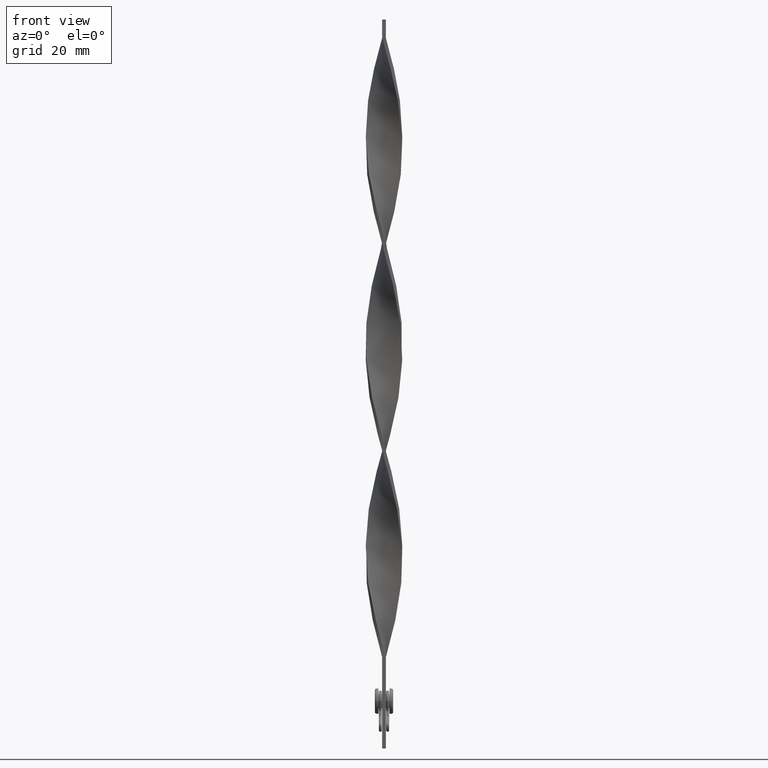
[diagram: clean part render]
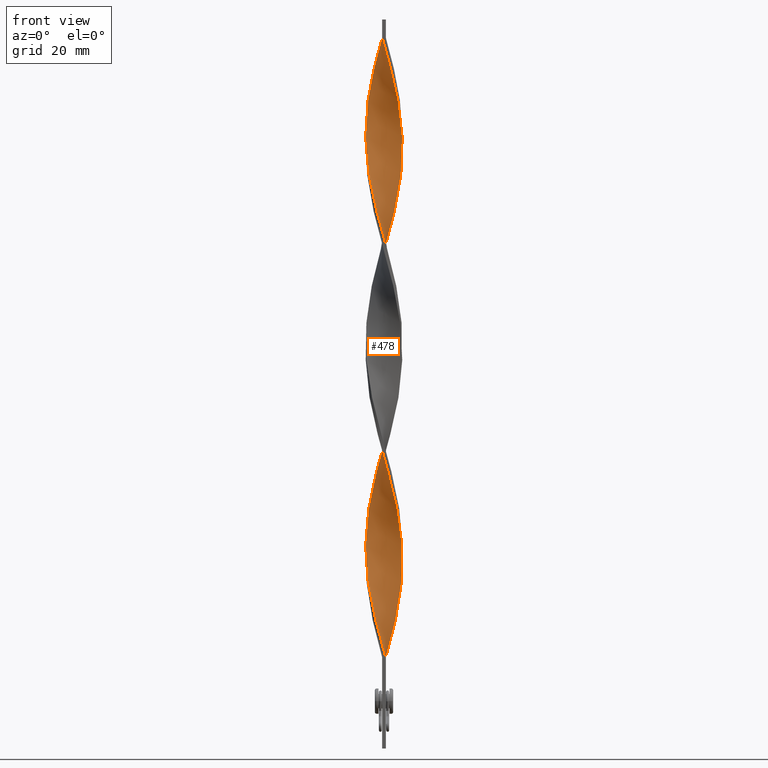
[diagram: same view with one face highlighted and labeled with its STEP entity id]
A machine part, front view. The second image highlights one B-rep face of the part: STEP entity #478.
In plain terms, the highlighted face is a freeform B-spline surface patch.
Its self-contained STEP definition (entity closure, byte-faithful):
#5 = CARTESIAN_POINT ( 'NONE',  ( -3.508828410751623217, -3.596960269992189207, 154.0740740740740478 ) ) ;
#7 = VECTOR ( 'NONE', #923, 1000.000000000000000 ) ;
#14 = CARTESIAN_POINT ( 'NONE',  ( -4.718173684218109010, 1.783846212051887647, 114.7222222222222285 ) ) ;
#30 =( BOUNDED_CURVE ( )  B_SPLINE_CURVE ( 2, ( #1325, #3055, #623, #4179, #987, #1722, #3827, #4131, #640, #3764, #2040, #2331, #1697, #2775, #4202, #1009, #2418, #3844, #4488, #1279, #1260, #940, #2002, #3073, #4220, #1763, #2090, #730, #707, #2157, #757, #4267, #408, #3866, #3234, #3594, #64, #1387, #4295, #383, #2795, #1414, #2133, #3208, #685, #1813, #3618, #430, #1049, #2183, #3521, #3967, #1461, #780, #338, #1744, #3159, #14, #40, #2887, #1789, #3135, #4602, #4243, #1366, #2842, #1440, #4582, #2817, #2438, #4321, #2865, #1025, #2461, #3891, #2112, #3543, #361, #3183, #1072, #3917, #2485, #3569, #1095, #2509, #3942, #1122, #2535, #2916, #2557, #115, #1929, #1215, #3360, #3644, #1164, #853, #1512, #88, #2283, #3260, #1862, #158, #184, #2235, #3289, #4348, #2650, #3713 ),
 .UNSPECIFIED., .F., .T. ) 
 B_SPLINE_CURVE_WITH_KNOTS ( ( 3, 2, 2, 2, 2, 2, 2, 2, 2, 2, 2, 2, 2, 2, 2, 2, 2, 2, 2, 2, 2, 2, 2, 2, 2, 2, 2, 2, 2, 2, 2, 2, 2, 2, 2, 2, 2, 2, 2, 2, 2, 2, 2, 2, 2, 2, 2, 2, 2, 2, 2, 2, 2, 2, 3 ),
 ( 0.000000000000000000, 0.01388888888888888812, 0.02777777777777777624, 0.04166666666666666435, 0.05555555555555555247, 0.06944444444444444753, 0.08333333333333332871, 0.09722222222222222376, 0.1111111111111111049, 0.1250000000000000000, 0.1388888888888888951, 0.1527777777777777901, 0.1666666666666666574, 0.1805555555555555525, 0.1944444444444444475, 0.2083333333333333426, 0.2222222222222222099, 0.2361111111111110772, 0.2500000000000000000, 0.2638888888888888951, 0.2777777777777777901, 0.2916666666666666852, 0.3055555555555555802, 0.3194444444444444198, 0.3333333333333333148, 0.3472222222222221544, 0.3611111111111111049, 0.3750000000000000000, 0.3888888888888888951, 0.4027777777777778456, 0.4166666666666666852, 0.4305555555555555802, 0.4444444444444444198, 0.4583333333333333148, 0.4722222222222221544, 0.4861111111111111049, 0.5000000000000000000, 0.5138888888888888395, 0.5277777777777777901, 0.5416666666666666297, 0.5555555555555555802, 0.5694444444444444198, 0.5833333333333333703, 0.5972222222222222099, 0.6111111111111111605, 0.6250000000000000000, 0.6388888888888888395, 0.6527777777777777901, 0.6666666666666666297, 0.6805555555555556912, 0.6944444444444443088, 0.7083333333333333703, 0.7222222222222222099, 0.7361111111111111605, 0.7500000000000000000 ),
 .UNSPECIFIED. ) 
 CURVE ( )  GEOMETRIC_REPRESENTATION_ITEM ( )  RATIONAL_B_SPLINE_CURVE ( ( 1.000000000000000000, 0.9961946980917455452, 1.000000000000000000, 0.9961946980917455452, 1.000000000000000000, 0.9961946980917455452, 1.000000000000000000, 0.9961946980917455452, 1.000000000000000000, 0.9961946980917455452, 1.000000000000000000, 0.9961946980917455452, 1.000000000000000000, 0.9961946980917455452, 1.000000000000000000, 0.9961946980917455452, 1.000000000000000000, 0.9961946980917455452, 1.000000000000000000, 0.9961946980917455452, 1.000000000000000000, 0.9961946980917455452, 1.000000000000000000, 0.9961946980917455452, 1.000000000000000000, 0.9961946980917455452, 1.000000000000000000, 0.9961946980917455452, 1.000000000000000000, 0.9961946980917455452, 1.000000000000000000, 0.9961946980917455452, 1.000000000000000000, 0.9961946980917455452, 1.000000000000000000, 0.9961946980917455452, 1.000000000000000000, 0.9961946980917455452, 1.000000000000000000, 0.9961946980917455452, 1.000000000000000000, 0.9961946980917455452, 1.000000000000000000, 0.9961946980917455452, 1.000000000000000000, 0.9961946980917455452, 1.000000000000000000, 0.9961946980917455452, 1.000000000000000000, 0.9961946980917455452, 1.000000000000000000, 0.9961946980917455452, 1.000000000000000000, 0.9961946980917455452, 1.000000000000000000, 0.9961946980917455452, 1.000000000000000000, 0.9961946980917455452, 1.000000000000000000, 0.9961946980917455452, 1.000000000000000000, 0.9961946980917455452, 1.000000000000000000, 0.9961946980917455452, 1.000000000000000000, 0.9961946980917455452, 1.000000000000000000, 0.9961946980917455452, 1.000000000000000000, 0.9961946980917455452, 1.000000000000000000, 0.9961946980917455452, 1.000000000000000000, 0.9961946980917455452, 1.000000000000000000, 0.9961946980917455452, 1.000000000000000000, 0.9961946980917455452, 1.000000000000000000, 0.9961946980917455452, 1.000000000000000000, 0.9961946980917455452, 1.000000000000000000, 0.9961946980917455452, 1.000000000000000000, 0.9961946980917455452, 1.000000000000000000, 0.9961946980917455452, 1.000000000000000000, 0.9961946980917455452, 1.000000000000000000, 0.9961946980917455452, 1.000000000000000000, 0.9961946980917455452, 1.000000000000000000, 0.9961946980917455452, 1.000000000000000000, 0.9961946980917455452, 1.000000000000000000, 0.9961946980917455452, 1.000000000000000000, 0.9961946980917455452, 1.000000000000000000, 0.9961946980917455452, 1.000000000000000000, 0.9961946980917455452, 1.000000000000000000, 0.9961946980917455452, 1.000000000000000000 ) ) 
 REPRESENTATION_ITEM ( '' )  );
#31 = VERTEX_POINT ( 'NONE', #1310 ) ;
#33 = CARTESIAN_POINT ( 'NONE',  ( -0.3758370118285474515, -5.010862853894509250, 141.4814814814814952 ) ) ;
#40 = CARTESIAN_POINT ( 'NONE',  ( -4.527453032266704369, 2.179947027021293504, 116.2962962962962905 ) ) ;
#47 = CARTESIAN_POINT ( 'NONE',  ( -3.508828410751623217, -3.596960269992189207, 40.74074074074074758 ) ) ;
#56 = CARTESIAN_POINT ( 'NONE',  ( 4.869473175592371916, 1.240254406235388629, 47.03703703703703809 ) ) ;
#64 = CARTESIAN_POINT ( 'NONE',  ( -0.4999999999999990563, -4.999999999999995559, 81.66666666666667140 ) ) ;
#69 = CARTESIAN_POINT ( 'NONE',  ( -4.956255668237042222, -0.9374433176296222969, 51.75925925925925952 ) ) ;
#78 = CARTESIAN_POINT ( 'NONE',  ( -4.399289062685688201, 2.467696489772257973, 177.6851851851851620 ) ) ;
#88 = CARTESIAN_POINT ( 'NONE',  ( 3.508828410751617444, -3.596960269992182990, 179.2592592592592666 ) ) ;
#96 = CARTESIAN_POINT ( 'NONE',  ( -4.151616020438163801, 2.830915826873209973, 65.92592592592592382 ) ) ;
#106 = CARTESIAN_POINT ( 'NONE',  ( -3.289977561793730576, -3.823521657529081352, 92.68518518518517624 ) ) ;
#115 = CARTESIAN_POINT ( 'NONE',  ( 4.999999999999995559, -0.4999999999999993339, 166.6666666666666572 ) ) ;
#120 = CARTESIAN_POINT ( 'NONE',  ( -5.000000000000004441, -0.5000000000000013323, 166.6666666666666572 ) ) ;
#128 = CARTESIAN_POINT ( 'NONE',  ( -0.3758370118285475625, 5.010862853894500368, 135.1851851851851904 ) ) ;
#142 = CARTESIAN_POINT ( 'NONE',  ( 2.066987298107780813, 4.580127018922198090, 91.11111111111111427 ) ) ;
#149 = CARTESIAN_POINT ( 'NONE',  ( -4.399289062685677543, -2.467696489772257085, 98.98148148148148096 ) ) ;
#158 = CARTESIAN_POINT ( 'NONE',  ( 2.066987298107778148, -4.580127018922190096, 185.5555555555555429 ) ) ;
#161 = CARTESIAN_POINT ( 'NONE',  ( -0.3758370118285474515, -5.010862853894509250, 28.14814814814815236 ) ) ;
#165 = CARTESIAN_POINT ( 'NONE',  ( 2.576047841990709575, -4.336732380315305058, 130.4629629629629619 ) ) ;
#177 = CARTESIAN_POINT ( 'NONE',  ( 1.240254406235389073, -4.869473175592371916, 75.37037037037036669 ) ) ;
#184 = CARTESIAN_POINT ( 'NONE',  ( 1.666278106443302320, -4.760964975158699097, 187.1296296296296191 ) ) ;
#185 = CARTESIAN_POINT ( 'NONE',  ( 4.080127018922194537, 2.933012701892224516, 100.5555555555555713 ) ) ;
#189 = CARTESIAN_POINT ( 'NONE',  ( -3.194135163974160196, -3.903942978190640289, 152.5000000000000000 ) ) ;
#205 = CARTESIAN_POINT ( 'NONE',  ( -5.043744331762966659, -0.06255668237038140844, 54.90740740740741188 ) ) ;
#209 = CARTESIAN_POINT ( 'NONE',  ( -4.837214676227579169, -1.360644764840757803, 163.5185185185185048 ) ) ;
#223 = CARTESIAN_POINT ( 'NONE',  ( -4.527453032266710586, -2.179947027021300610, 47.03703703703703809 ) ) ;
#227 = CARTESIAN_POINT ( 'NONE',  ( -0.5000000000000016653, 5.000000000000004441, 195.0000000000000000 ) ) ;
#244 = CARTESIAN_POINT ( 'NONE',  ( 0.06255668237038064516, -5.043744331762966659, 26.57407407407407618 ) ) ;
#289 = CARTESIAN_POINT ( 'NONE',  ( -2.179947027021300610, 4.527453032266710586, 188.7037037037036953 ) ) ;
#297 = CARTESIAN_POINT ( 'NONE',  ( 4.977981376026044735, 0.8142307060274744934, 161.9444444444444002 ) ) ;
#315 = CARTESIAN_POINT ( 'NONE',  ( -3.289977561793739458, 3.823521657529084905, 183.9814814814814667 ) ) ;
#331 = CARTESIAN_POINT ( 'NONE',  ( -2.576047841990706910, 4.336732380315305946, 187.1296296296296191 ) ) ;
#335 = ORIENTED_EDGE ( 'NONE', *, *, #2996, .F. ) ;
#338 = CARTESIAN_POINT ( 'NONE',  ( -4.999999999999995559, 0.4999999999999988343, 110.0000000000000142 ) ) ;
#353 = CARTESIAN_POINT ( 'NONE',  ( -4.760964975158708867, 1.666278106443303875, 174.5370370370370381 ) ) ;
#361 = CARTESIAN_POINT ( 'NONE',  ( 2.576047841990702025, 4.336732380315298840, 146.2037037037036953 ) ) ;
#375 = CARTESIAN_POINT ( 'NONE',  ( -4.977981376026053617, 0.8142307060274747155, 171.3888888888888857 ) ) ;
#383 = CARTESIAN_POINT ( 'NONE',  ( -1.783846212051890312, -4.718173684218108122, 86.38888888888888573 ) ) ;
#402 = CARTESIAN_POINT ( 'NONE',  ( -5.043744331762966659, -0.06255668237038140844, 168.2407407407407618 ) ) ;
#408 = CARTESIAN_POINT ( 'NONE',  ( 1.240254406235389073, -4.869473175592371916, 75.37037037037036669 ) ) ;
#430 = CARTESIAN_POINT ( 'NONE',  ( -4.399289062685677543, -2.467696489772257085, 98.98148148148148096 ) ) ;
#436 = CARTESIAN_POINT ( 'NONE',  ( -1.240254406235389739, -4.869473175592380798, 31.29629629629629406 ) ) ;
#447 = CARTESIAN_POINT ( 'NONE',  ( -0.9374433176296181891, -4.956255668237032452, 83.24074074074074758 ) ) ;
#465 = CARTESIAN_POINT ( 'NONE',  ( 2.179947027021303718, -4.527453032266708810, 132.0370370370370381 ) ) ;
#472 = CARTESIAN_POINT ( 'NONE',  ( -4.999999999999995559, 0.4999999999999988343, 110.0000000000000142 ) ) ;
#478 = ADVANCED_FACE ( 'NONE', ( #4349 ), #2414, .T. ) ;
#490 = CARTESIAN_POINT ( 'NONE',  ( 4.977981376026053617, -0.8142307060274732722, 114.7222222222222285 ) ) ;
#498 = CARTESIAN_POINT ( 'NONE',  ( 4.837214676227571175, -1.360644764840754473, 56.48148148148148806 ) ) ;
#511 = CARTESIAN_POINT ( 'NONE',  ( 0.8142307060274756036, 4.977981376026053617, 86.38888888888888573 ) ) ;
#516 = CARTESIAN_POINT ( 'NONE',  ( -2.179947027021300610, 4.527453032266710586, 75.37037037037036669 ) ) ;
#523 = CARTESIAN_POINT ( 'NONE',  ( -1.783846212051890312, -4.718173684218108122, 86.38888888888888573 ) ) ;
#532 = CARTESIAN_POINT ( 'NONE',  ( 3.823521657529084461, 3.289977561793739458, 98.98148148148148096 ) ) ;
#535 = CARTESIAN_POINT ( 'NONE',  ( 1.360644764840757803, -4.837214676227579169, 135.1851851851851904 ) ) ;
#548 = CARTESIAN_POINT ( 'NONE',  ( -0.4999999999999990563, -4.999999999999995559, 81.66666666666667140 ) ) ;
#554 = CARTESIAN_POINT ( 'NONE',  ( -4.151616020438163801, 2.830915826873209973, 65.92592592592592382 ) ) ;
#557 = CARTESIAN_POINT ( 'NONE',  ( 4.760964975158708867, -1.666278106443300988, 117.8703703703703809 ) ) ;
#573 = CARTESIAN_POINT ( 'NONE',  ( -4.837214676227579169, -1.360644764840757803, 50.18518518518518334 ) ) ;
#577 = CARTESIAN_POINT ( 'NONE',  ( -1.360644764840759136, 4.837214676227578281, 191.8518518518518476 ) ) ;
#594 = CARTESIAN_POINT ( 'NONE',  ( 4.151616020438163801, -2.830915826873209529, 122.5925925925925810 ) ) ;
#598 = CARTESIAN_POINT ( 'NONE',  ( -3.596960269992189652, 3.508828410751622773, 182.4074074074074190 ) ) ;
#623 = CARTESIAN_POINT ( 'NONE',  ( 1.360644764840754473, 4.837214676227571175, 28.14814814814815236 ) ) ;
#640 = CARTESIAN_POINT ( 'NONE',  ( 3.596960269992182546, 3.508828410751617444, 37.59259259259259522 ) ) ;
#644 = CARTESIAN_POINT ( 'NONE',  ( 4.399289062685679319, 2.467696489772255308, 155.6481481481481524 ) ) ;
#656 = CARTESIAN_POINT ( 'NONE',  ( -2.576047841990706910, 4.336732380315305946, 187.1296296296296191 ) ) ;
#662 = CARTESIAN_POINT ( 'NONE',  ( 5.010862853894500368, 0.3758370118285476735, 163.5185185185185048 ) ) ;
#674 = ORIENTED_EDGE ( 'NONE', *, *, #3906, .F. ) ;
#675 = CARTESIAN_POINT ( 'NONE',  ( -4.837214676227579169, -1.360644764840757803, 163.5185185185185048 ) ) ;
#685 = CARTESIAN_POINT ( 'NONE',  ( -3.596960269992182546, -3.508828410751617444, 94.25925925925926663 ) ) ;
#691 = CARTESIAN_POINT ( 'NONE',  ( 4.760964975158699097, 1.666278106443301876, 158.7962962962963047 ) ) ;
#700 = CARTESIAN_POINT ( 'NONE',  ( -3.903942978190639845, 3.194135163974159752, 180.8333333333333144 ) ) ;
#707 = CARTESIAN_POINT ( 'NONE',  ( 2.830915826873205532, -4.151616020438155807, 69.07407407407406197 ) ) ;
#713 = CARTESIAN_POINT ( 'NONE',  ( -2.830915826873209529, -4.151616020438163801, 37.59259259259259522 ) ) ;
#723 = CARTESIAN_POINT ( 'NONE',  ( 3.903942978190633184, 3.194135163974154423, 39.16666666666667140 ) ) ;
#730 = CARTESIAN_POINT ( 'NONE',  ( 3.194135163974154867, -3.903942978190632296, 67.50000000000000000 ) ) ;
#736 = CARTESIAN_POINT ( 'NONE',  ( -5.010862853894509250, 0.3758370118285473405, 56.48148148148148806 ) ) ;
#746 = CARTESIAN_POINT ( 'NONE',  ( 0.06255668237038064516, -5.043744331762966659, 139.9074074074073906 ) ) ;
#757 = CARTESIAN_POINT ( 'NONE',  ( 2.066987298107778148, -4.580127018922190096, 72.22222222222221433 ) ) ;
#773 = CARTESIAN_POINT ( 'NONE',  ( 5.010862853894500368, 0.3758370118285476735, 50.18518518518518334 ) ) ;
#780 = CARTESIAN_POINT ( 'NONE',  ( -5.043744331762957778, 0.06255668237037967372, 108.4259259259259238 ) ) ;
#788 = CARTESIAN_POINT ( 'NONE',  ( -4.869473175592380798, 1.240254406235389739, 59.62962962962962621 ) ) ;
#793 = CARTESIAN_POINT ( 'NONE',  ( 3.289977561793731020, 3.823521657529080464, 149.3518518518518476 ) ) ;
#805 = CARTESIAN_POINT ( 'NONE',  ( 4.956255668237042222, 0.9374433176296217418, 108.4259259259259238 ) ) ;
#815 = CARTESIAN_POINT ( 'NONE',  ( 4.956255668237032452, -0.9374433176296185222, 54.90740740740741188 ) ) ;
#835 = CARTESIAN_POINT ( 'NONE',  ( 2.830915826873209529, 4.151616020438163801, 94.25925925925926663 ) ) ;
#845 = CARTESIAN_POINT ( 'NONE',  ( 3.823521657529081352, -3.289977561793730576, 64.35185185185184764 ) ) ;
#853 = CARTESIAN_POINT ( 'NONE',  ( 4.080127018922190096, -2.933012701892215635, 176.1111111111111143 ) ) ;
#855 = CARTESIAN_POINT ( 'NONE',  ( -0.06255668237038172763, 5.043744331762966659, 83.24074074074074758 ) ) ;
#860 = CARTESIAN_POINT ( 'NONE',  ( 1.240254406235389517, 4.869473175592380798, 87.96296296296296191 ) ) ;
#867 = CARTESIAN_POINT ( 'NONE',  ( 4.336732380315299729, -2.576047841990701581, 61.20370370370370239 ) ) ;
#878 = CARTESIAN_POINT ( 'NONE',  ( -4.399289062685688201, 2.467696489772257973, 64.35185185185184764 ) ) ;
#881 = CARTESIAN_POINT ( 'NONE',  ( 5.043744331762966659, 0.06255668237038200519, 111.5740740740740762 ) ) ;
#887 = CARTESIAN_POINT ( 'NONE',  ( -4.977981376026044735, -0.8142307060274738273, 105.2777777777777715 ) ) ;
#898 = CARTESIAN_POINT ( 'NONE',  ( -1.666278106443304319, -4.760964975158707979, 32.87037037037037379 ) ) ;
#901 = CARTESIAN_POINT ( 'NONE',  ( 4.151616020438163801, -2.830915826873209529, 122.5925925925925810 ) ) ;
#918 = CARTESIAN_POINT ( 'NONE',  ( -0.5000000000000016653, 5.000000000000004441, 81.66666666666667140 ) ) ;
#923 = DIRECTION ( 'NONE',  ( 1.301042606982605321E-16, -1.000000000000000000, 0.000000000000000000 ) ) ;
#938 = CARTESIAN_POINT ( 'NONE',  ( 1.666278106443303875, 4.760964975158708867, 89.53703703703702388 ) ) ;
#940 = CARTESIAN_POINT ( 'NONE',  ( 4.718173684218108122, -1.783846212051889424, 58.05555555555555713 ) ) ;
#944 = CARTESIAN_POINT ( 'NONE',  ( 4.151616020438156696, 2.830915826873205088, 154.0740740740740478 ) ) ;
#959 = CARTESIAN_POINT ( 'NONE',  ( -1.666278106443304319, -4.760964975158707979, 146.2037037037037237 ) ) ;
#987 = CARTESIAN_POINT ( 'NONE',  ( 2.179947027021296169, 4.527453032266704369, 31.29629629629629406 ) ) ;
#992 = CARTESIAN_POINT ( 'NONE',  ( 1.240254406235389073, -4.869473175592371916, 188.7037037037036953 ) ) ;
#1009 = CARTESIAN_POINT ( 'NONE',  ( 4.977981376026044735, 0.8142307060274744934, 48.61111111111111427 ) ) ;
#1025 = CARTESIAN_POINT ( 'NONE',  ( 0.4999999999999996669, 4.999999999999995559, 138.3333333333333428 ) ) ;
#1040 = CARTESIAN_POINT ( 'NONE',  ( 0.5000000000000009992, -5.000000000000004441, 138.3333333333333428 ) ) ;
#1049 = CARTESIAN_POINT ( 'NONE',  ( -4.580127018922189208, -2.066987298107781257, 100.5555555555555713 ) ) ;
#1051 = CARTESIAN_POINT ( 'NONE',  ( -0.5000000000000016653, 5.000000000000004441, 195.0000000000000000 ) ) ;
#1064 = CARTESIAN_POINT ( 'NONE',  ( 2.576047841990702025, 4.336732380315298840, 32.87037037037037379 ) ) ;
#1072 = CARTESIAN_POINT ( 'NONE',  ( 3.289977561793731464, 3.823521657529080464, 149.3518518518518476 ) ) ;
#1079 = CARTESIAN_POINT ( 'NONE',  ( -5.043744331762966659, -0.06255668237038140844, 54.90740740740740478 ) ) ;
#1089 = CARTESIAN_POINT ( 'NONE',  ( -2.933012701892221852, 4.080127018922197202, 185.5555555555555429 ) ) ;
#1095 = CARTESIAN_POINT ( 'NONE',  ( 4.399289062685679319, 2.467696489772255308, 155.6481481481481524 ) ) ;
#1111 = CARTESIAN_POINT ( 'NONE',  ( -5.010862853894509250, 0.3758370118285473405, 169.8148148148148096 ) ) ;
#1122 = CARTESIAN_POINT ( 'NONE',  ( 4.869473175592371916, 1.240254406235388629, 160.3703703703703525 ) ) ;
#1129 = CARTESIAN_POINT ( 'NONE',  ( -4.977981376026053617, 0.8142307060274747155, 58.05555555555555713 ) ) ;
#1136 = CARTESIAN_POINT ( 'NONE',  ( 2.179947027021296169, 4.527453032266704369, 144.6296296296296475 ) ) ;
#1149 = CARTESIAN_POINT ( 'NONE',  ( -0.5000000000000016653, 5.000000000000004441, 81.66666666666667140 ) ) ;
#1156 = CARTESIAN_POINT ( 'NONE',  ( -4.336732380315300617, 2.576047841990698917, 117.8703703703703667 ) ) ;
#1164 = CARTESIAN_POINT ( 'NONE',  ( 4.336732380315299729, -2.576047841990701581, 174.5370370370370381 ) ) ;
#1169 = CARTESIAN_POINT ( 'NONE',  ( -2.933012701892221852, 4.080127018922197202, 72.22222222222221433 ) ) ;
#1181 = CARTESIAN_POINT ( 'NONE',  ( 3.194135163974154423, -3.903942978190632296, 67.50000000000001421 ) ) ;
#1196 = CARTESIAN_POINT ( 'NONE',  ( -1.240254406235389739, -4.869473175592380798, 144.6296296296296475 ) ) ;
#1206 = CARTESIAN_POINT ( 'NONE',  ( -3.508828410751617888, 3.596960269992182546, 122.5925925925925810 ) ) ;
#1215 = CARTESIAN_POINT ( 'NONE',  ( 4.837214676227571175, -1.360644764840754473, 169.8148148148148096 ) ) ;
#1217 = CARTESIAN_POINT ( 'NONE',  ( -3.596960269992189652, 3.508828410751622773, 69.07407407407406197 ) ) ;
#1221 = CARTESIAN_POINT ( 'NONE',  ( 1.666278106443303875, 4.760964975158708867, 89.53703703703702388 ) ) ;
#1228 = CARTESIAN_POINT ( 'NONE',  ( 0.4999999999999996669, 4.999999999999995559, 138.3333333333333428 ) ) ;
#1234 = CARTESIAN_POINT ( 'NONE',  ( 5.000000000000004441, 0.5000000000000018874, 110.0000000000000142 ) ) ;
#1237 = CARTESIAN_POINT ( 'NONE',  ( 1.783846212051893421, -4.718173684218117003, 133.6111111111111143 ) ) ;
#1256 = CARTESIAN_POINT ( 'NONE',  ( -4.869473175592380798, 1.240254406235389739, 59.62962962962962621 ) ) ;
#1260 = CARTESIAN_POINT ( 'NONE',  ( 4.837214676227571175, -1.360644764840754473, 56.48148148148148806 ) ) ;
#1276 = CARTESIAN_POINT ( 'NONE',  ( 4.869473175592381686, -1.240254406235387297, 116.2962962962962905 ) ) ;
#1279 = CARTESIAN_POINT ( 'NONE',  ( 4.956255668237033341, -0.9374433176296185222, 54.90740740740740478 ) ) ;
#1294 = CARTESIAN_POINT ( 'NONE',  ( -0.5000000000000016653, 5.000000000000004441, 195.0000000000000000 ) ) ;
#1298 = CARTESIAN_POINT ( 'NONE',  ( -2.933012701892221852, 4.080127018922197202, 72.22222222222221433 ) ) ;
#1306 = CARTESIAN_POINT ( 'NONE',  ( -0.06255668237037995127, -5.043744331762956890, 193.4259259259259238 ) ) ;
#1310 = CARTESIAN_POINT ( 'NONE',  ( 0.4999999999999996669, 4.999999999999995559, 25.00000000000000000 ) ) ;
#1325 = CARTESIAN_POINT ( 'NONE',  ( 0.4999999999999996669, 4.999999999999995559, 25.00000000000000000 ) ) ;
#1332 = CARTESIAN_POINT ( 'NONE',  ( 4.580127018922189208, 2.066987298107779036, 157.2222222222222001 ) ) ;
#1366 = CARTESIAN_POINT ( 'NONE',  ( -2.830915826873206864, 4.151616020438154919, 125.7407407407407334 ) ) ;
#1379 = CARTESIAN_POINT ( 'NONE',  ( -4.336732380315305946, -2.576047841990706466, 158.7962962962963047 ) ) ;
#1387 = CARTESIAN_POINT ( 'NONE',  ( -0.9374433176296181891, -4.956255668237033341, 83.24074074074073337 ) ) ;
#1406 = CARTESIAN_POINT ( 'NONE',  ( 1.360644764840754473, 4.837214676227571175, 28.14814814814815236 ) ) ;
#1414 = CARTESIAN_POINT ( 'NONE',  ( -2.576047841990701137, -4.336732380315299729, 89.53703703703702388 ) ) ;
#1427 = CARTESIAN_POINT ( 'NONE',  ( 3.903942978190633184, 3.194135163974154423, 152.5000000000000000 ) ) ;
#1431 = CARTESIAN_POINT ( 'NONE',  ( 4.580127018922189208, 2.066987298107779036, 43.88888888888889284 ) ) ;
#1440 = CARTESIAN_POINT ( 'NONE',  ( -2.066987298107781257, 4.580127018922188320, 128.8888888888888857 ) ) ;
#1455 = CARTESIAN_POINT ( 'NONE',  ( -2.467696489772259305, -4.399289062685687313, 149.3518518518518476 ) ) ;
#1461 = CARTESIAN_POINT ( 'NONE',  ( -5.010862853894500368, -0.3758370118285472294, 106.8518518518518619 ) ) ;
#1466 = CARTESIAN_POINT ( 'NONE',  ( -4.527453032266710586, -2.179947027021300610, 47.03703703703703809 ) ) ;
#1477 = CARTESIAN_POINT ( 'NONE',  ( 0.3758370118285490613, -5.010862853894500368, 78.51851851851851904 ) ) ;
#1495 = LINE ( 'NONE', #2683, #7 ) ;
#1502 = CARTESIAN_POINT ( 'NONE',  ( -3.823521657529080464, 3.289977561793731020, 121.0185185185185333 ) ) ;
#1507 = VERTEX_POINT ( 'NONE', #2101 ) ;
#1512 = CARTESIAN_POINT ( 'NONE',  ( 3.823521657529081352, -3.289977561793731020, 177.6851851851851620 ) ) ;
#1518 = CARTESIAN_POINT ( 'NONE',  ( -2.467696489772259305, -4.399289062685687313, 149.3518518518518476 ) ) ;
#1524 = CARTESIAN_POINT ( 'NONE',  ( -1.240254406235391738, 4.869473175592371028, 132.0370370370370381 ) ) ;
#1540 = CARTESIAN_POINT ( 'NONE',  ( 3.596960269992190540, -3.508828410751622329, 125.7407407407407334 ) ) ;
#1551 = CARTESIAN_POINT ( 'NONE',  ( 2.066987298107778148, -4.580127018922190096, 72.22222222222221433 ) ) ;
#1562 = CARTESIAN_POINT ( 'NONE',  ( -0.8142307060274753816, -4.977981376026053617, 29.72222222222222143 ) ) ;
#1567 = CARTESIAN_POINT ( 'NONE',  ( -1.360644764840759136, 4.837214676227578281, 78.51851851851851904 ) ) ;
#1577 = CARTESIAN_POINT ( 'NONE',  ( -4.527453032266704369, 2.179947027021293504, 116.2962962962962905 ) ) ;
#1584 = CARTESIAN_POINT ( 'NONE',  ( -4.760964975158708867, 1.666278106443303875, 61.20370370370370239 ) ) ;
#1588 = CARTESIAN_POINT ( 'NONE',  ( -2.830915826873209529, -4.151616020438163801, 150.9259259259259238 ) ) ;
#1601 = CARTESIAN_POINT ( 'NONE',  ( -3.903942978190639845, 3.194135163974159752, 67.50000000000001421 ) ) ;
#1605 = CARTESIAN_POINT ( 'NONE',  ( -0.9374433176296214087, 4.956255668237042222, 80.09259259259260944 ) ) ;
#1626 = CARTESIAN_POINT ( 'NONE',  ( 4.977981376026053617, -0.8142307060274731612, 114.7222222222222285 ) ) ;
#1650 = CARTESIAN_POINT ( 'NONE',  ( 2.066987298107780813, 4.580127018922198090, 91.11111111111111427 ) ) ;
#1652 = CARTESIAN_POINT ( 'NONE',  ( -3.903942978190640289, 3.194135163974159752, 180.8333333333333144 ) ) ;
#1658 = CARTESIAN_POINT ( 'NONE',  ( 4.527453032266704369, -2.179947027021296169, 172.9629629629629619 ) ) ;
#1674 = CARTESIAN_POINT ( 'NONE',  ( -5.043744331762966659, -0.06255668237038140844, 168.2407407407407334 ) ) ;
#1697 = CARTESIAN_POINT ( 'NONE',  ( 4.580127018922189208, 2.066987298107779036, 43.88888888888889284 ) ) ;
#1704 = CARTESIAN_POINT ( 'NONE',  ( 1.666278106443302320, -4.760964975158699097, 187.1296296296296191 ) ) ;
#1722 = CARTESIAN_POINT ( 'NONE',  ( 2.576047841990702025, 4.336732380315298840, 32.87037037037036669 ) ) ;
#1737 = CARTESIAN_POINT ( 'NONE',  ( -1.783846212051894753, 4.718173684218115227, 190.2777777777777999 ) ) ;
#1744 = CARTESIAN_POINT ( 'NONE',  ( -4.956255668237033341, 0.9374433176296179671, 111.5740740740740762 ) ) ;
#1755 = CARTESIAN_POINT ( 'NONE',  ( 0.4999999999999996669, 4.999999999999995559, 25.00000000000000000 ) ) ;
#1763 = CARTESIAN_POINT ( 'NONE',  ( 3.823521657529081352, -3.289977561793731020, 64.35185185185184764 ) ) ;
#1769 = CARTESIAN_POINT ( 'NONE',  ( -0.8142307060274753816, -4.977981376026053617, 29.72222222222222143 ) ) ;
#1780 = CARTESIAN_POINT ( 'NONE',  ( 2.933012701892216523, 4.080127018922189208, 34.44444444444444287 ) ) ;
#1789 = CARTESIAN_POINT ( 'NONE',  ( -4.080127018922188320, 2.933012701892217411, 119.4444444444444429 ) ) ;
#1797 = CARTESIAN_POINT ( 'NONE',  ( -0.3758370118285474515, -5.010862853894509250, 28.14814814814815236 ) ) ;
#1806 = CARTESIAN_POINT ( 'NONE',  ( -2.066987298107781701, -4.580127018922198090, 147.7777777777777715 ) ) ;
#1813 = CARTESIAN_POINT ( 'NONE',  ( -3.903942978190632296, -3.194135163974155311, 95.83333333333332860 ) ) ;
#1819 = CARTESIAN_POINT ( 'NONE',  ( -4.336732380315305946, -2.576047841990706466, 45.46296296296296902 ) ) ;
#1828 = CARTESIAN_POINT ( 'NONE',  ( -3.194135163974160196, -3.903942978190639845, 152.5000000000000000 ) ) ;
#1841 = CARTESIAN_POINT ( 'NONE',  ( -4.580127018922198090, 2.066987298107780813, 62.77777777777777857 ) ) ;
#1852 = CARTESIAN_POINT ( 'NONE',  ( -2.933012701892215635, -4.080127018922190985, 91.11111111111111427 ) ) ;
#1862 = CARTESIAN_POINT ( 'NONE',  ( 2.467696489772257085, -4.399289062685677543, 183.9814814814814667 ) ) ;
#1868 = CARTESIAN_POINT ( 'NONE',  ( -2.066987298107781701, -4.580127018922198090, 147.7777777777777715 ) ) ;
#1876 = CARTESIAN_POINT ( 'NONE',  ( -4.760964975158698209, -1.666278106443304763, 102.1296296296296333 ) ) ;
#1894 = CARTESIAN_POINT ( 'NONE',  ( 4.399289062685687313, -2.467696489772259305, 121.0185185185185190 ) ) ;
#1900 = CARTESIAN_POINT ( 'NONE',  ( 2.467696489772257085, -4.399289062685677543, 70.64814814814815236 ) ) ;
#1910 = CARTESIAN_POINT ( 'NONE',  ( 3.194135163974159752, 3.903942978190640289, 95.83333333333331439 ) ) ;
#1912 = EDGE_LOOP ( 'NONE', ( #3776, #2011, #335, #674 ) ) ;
#1915 = CARTESIAN_POINT ( 'NONE',  ( 3.508828410751622773, 3.596960269992189652, 97.40740740740741899 ) ) ;
#1923 = CARTESIAN_POINT ( 'NONE',  ( -4.151616020438155807, -2.830915826873205532, 97.40740740740741899 ) ) ;
#1929 = CARTESIAN_POINT ( 'NONE',  ( 4.956255668237033341, -0.9374433176296185222, 168.2407407407407334 ) ) ;
#1931 = CARTESIAN_POINT ( 'NONE',  ( -4.956255668237042222, -0.9374433176296222969, 51.75925925925925952 ) ) ;
#1936 = CARTESIAN_POINT ( 'NONE',  ( -0.8142307060274753816, -4.977981376026053617, 143.0555555555555429 ) ) ;
#1947 = CARTESIAN_POINT ( 'NONE',  ( 0.8142307060274758257, -4.977981376026043847, 76.94444444444445708 ) ) ;
#1954 = CARTESIAN_POINT ( 'NONE',  ( 4.718173684218117003, 1.783846212051892977, 105.2777777777777715 ) ) ;
#1957 = CARTESIAN_POINT ( 'NONE',  ( -4.527453032266710586, -2.179947027021300610, 160.3703703703703525 ) ) ;
#1973 = CARTESIAN_POINT ( 'NONE',  ( 5.043744331762966659, 0.06255668237038200519, 111.5740740740740620 ) ) ;
#1977 = CARTESIAN_POINT ( 'NONE',  ( -2.933012701892221852, 4.080127018922197202, 185.5555555555555429 ) ) ;
#1998 = CARTESIAN_POINT ( 'NONE',  ( 3.903942978190640289, -3.194135163974158864, 124.1666666666666714 ) ) ;
#2002 = CARTESIAN_POINT ( 'NONE',  ( 4.527453032266704369, -2.179947027021296169, 59.62962962962962621 ) ) ;
#2011 = ORIENTED_EDGE ( 'NONE', *, *, #4032, .T. ) ;
#2028 = CARTESIAN_POINT ( 'NONE',  ( 4.718173684218108122, -1.783846212051889424, 171.3888888888888857 ) ) ;
#2040 = CARTESIAN_POINT ( 'NONE',  ( 4.151616020438156696, 2.830915826873205088, 40.74074074074074758 ) ) ;
#2048 = CARTESIAN_POINT ( 'NONE',  ( 4.837214676227571175, -1.360644764840754473, 169.8148148148148096 ) ) ;
#2062 = CARTESIAN_POINT ( 'NONE',  ( -1.783846212051894753, 4.718173684218115227, 190.2777777777777715 ) ) ;
#2069 = CARTESIAN_POINT ( 'NONE',  ( 3.823521657529081352, -3.289977561793730576, 177.6851851851851620 ) ) ;
#2081 = CARTESIAN_POINT ( 'NONE',  ( -4.869473175592380798, 1.240254406235389739, 172.9629629629629619 ) ) ;
#2090 = CARTESIAN_POINT ( 'NONE',  ( 3.508828410751617444, -3.596960269992182990, 65.92592592592592382 ) ) ;
#2095 = CARTESIAN_POINT ( 'NONE',  ( 0.8142307060274758257, -4.977981376026043847, 190.2777777777777999 ) ) ;
#2101 = CARTESIAN_POINT ( 'NONE',  ( 0.5000000000000009992, -5.000000000000004441, 25.00000000000000000 ) ) ;
#2106 = CARTESIAN_POINT ( 'NONE',  ( -2.179947027021300610, 4.527453032266710586, 188.7037037037036953 ) ) ;
#2112 = CARTESIAN_POINT ( 'NONE',  ( 1.783846212051890090, 4.718173684218108122, 143.0555555555555429 ) ) ;
#2124 = CARTESIAN_POINT ( 'NONE',  ( 4.151616020438156696, 2.830915826873205088, 40.74074074074074758 ) ) ;
#2133 = CARTESIAN_POINT ( 'NONE',  ( -2.933012701892215635, -4.080127018922190985, 91.11111111111111427 ) ) ;
#2149 = CARTESIAN_POINT ( 'NONE',  ( 2.179947027021303718, -4.527453032266708810, 132.0370370370370381 ) ) ;
#2157 = CARTESIAN_POINT ( 'NONE',  ( 2.467696489772257085, -4.399289062685677543, 70.64814814814815236 ) ) ;
#2173 = CARTESIAN_POINT ( 'NONE',  ( 5.043744331762956890, -0.06255668237037913249, 51.75925925925925952 ) ) ;
#2183 = CARTESIAN_POINT ( 'NONE',  ( -4.760964975158698209, -1.666278106443304763, 102.1296296296296191 ) ) ;
#2189 = CARTESIAN_POINT ( 'NONE',  ( -4.760964975158708867, 1.666278106443303875, 61.20370370370370239 ) ) ;
#2198 = CARTESIAN_POINT ( 'NONE',  ( -2.576047841990701137, -4.336732380315299729, 89.53703703703702388 ) ) ;
#2213 = CARTESIAN_POINT ( 'NONE',  ( 5.010862853894510138, -0.3758370118285454531, 113.1481481481481381 ) ) ;
#2223 = CARTESIAN_POINT ( 'NONE',  ( -4.837214676227571175, 1.360644764840753140, 113.1481481481481381 ) ) ;
#2235 = CARTESIAN_POINT ( 'NONE',  ( 1.240254406235389073, -4.869473175592371916, 188.7037037037036953 ) ) ;
#2243 = CARTESIAN_POINT ( 'NONE',  ( 3.823521657529084905, 3.289977561793739458, 98.98148148148148096 ) ) ;
#2250 = CARTESIAN_POINT ( 'NONE',  ( -4.580127018922189208, -2.066987298107781257, 100.5555555555555713 ) ) ;
#2255 = EDGE_CURVE ( 'NONE', #31, #1507, #1495, .T. ) ;
#2261 = CARTESIAN_POINT ( 'NONE',  ( -2.467696489772259305, -4.399289062685687313, 36.01851851851851904 ) ) ;
#2266 = CARTESIAN_POINT ( 'NONE',  ( -2.576047841990706910, 4.336732380315305946, 73.79629629629630472 ) ) ;
#2274 = CARTESIAN_POINT ( 'NONE',  ( -5.010862853894500368, -0.3758370118285472294, 106.8518518518518619 ) ) ;
#2283 = CARTESIAN_POINT ( 'NONE',  ( 3.194135163974154867, -3.903942978190632296, 180.8333333333333144 ) ) ;
#2285 = CARTESIAN_POINT ( 'NONE',  ( -2.066987298107781701, -4.580127018922198090, 34.44444444444444287 ) ) ;
#2289 = CARTESIAN_POINT ( 'NONE',  ( 0.5000000000000009992, -5.000000000000004441, 138.3333333333333428 ) ) ;
#2298 = CARTESIAN_POINT ( 'NONE',  ( -1.360644764840753140, -4.837214676227571175, 84.81481481481480955 ) ) ;
#2308 = CARTESIAN_POINT ( 'NONE',  ( 2.467696489772257973, 4.399289062685688201, 92.68518518518517624 ) ) ;
#2312 = CARTESIAN_POINT ( 'NONE',  ( -4.080127018922196314, -2.933012701892222740, 157.2222222222222001 ) ) ;
#2328 = CARTESIAN_POINT ( 'NONE',  ( -5.000000000000004441, -0.5000000000000013323, 53.33333333333333570 ) ) ;
#2331 = CARTESIAN_POINT ( 'NONE',  ( 4.399289062685679319, 2.467696489772255308, 42.31481481481481666 ) ) ;
#2349 = CARTESIAN_POINT ( 'NONE',  ( 4.580127018922197202, -2.066987298107782589, 119.4444444444444429 ) ) ;
#2356 = CARTESIAN_POINT ( 'NONE',  ( 4.336732380315299729, -2.576047841990701581, 174.5370370370370381 ) ) ;
#2373 = CARTESIAN_POINT ( 'NONE',  ( -0.8142307060274753816, -4.977981376026053617, 143.0555555555555429 ) ) ;
#2383 = CARTESIAN_POINT ( 'NONE',  ( 3.508828410751617444, -3.596960269992182990, 179.2592592592592666 ) ) ;
#2398 = CARTESIAN_POINT ( 'NONE',  ( -4.399289062685688201, 2.467696489772257973, 177.6851851851851620 ) ) ;
#2403 = CARTESIAN_POINT ( 'NONE',  ( 0.3758370118285490613, -5.010862853894500368, 191.8518518518518476 ) ) ;
#2414 =( BOUNDED_SURFACE ( )  B_SPLINE_SURFACE ( 1, 2, ( 
 ( #3050, #244, #161, #1562, #2985, #898, #2285, #2261, #4484, #4424, #4505, #3383, #3334, #4083, #223, #3071, #573, #1931, #2328, #205, #2677, #4064, #1256, #1584, #2632, #878, #554, #1601, #1217, #4463, #1298, #4043, #3716, #4106, #3696, #3741, #918, #855, #3362, #511, #3427, #938, #1650, #2308, #3026, #1910, #2651, #532, #185, #3761, #3005, #1954, #4444, #4127, #1234, #1973, #3403, #1626, #1276, #2696, #2349, #3782, #594, #1998, #3932, #2721, #3610, #4286, #2149, #2880, #3226, #4310, #1040, #746, #33, #2373, #4147, #959, #1806, #1455, #3586, #1828, #5, #3536, #4235, #1379, #3805, #2807, #675, #4594, #3251, #402, #1111, #375, #2081, #353, #2455, #78, #3883, #700, #3513, #4259, #1089, #331, #2106, #1737, #2526, #2499, #3150 ),
 ( #1755, #3174, #1406, #3558, #2836, #1064, #1780, #2477, #3909, #723, #2124, #3202, #1431, #2858, #56, #3959, #773, #2173, #3276, #815, #498, #3375, #2596, #867, #3662, #845, #3350, #1181, #4384, #1900, #1551, #3635, #177, #1947, #1477, #4003, #548, #447, #2298, #523, #3731, #2198, #1852, #106, #2951, #2973, #1923, #149, #2250, #1876, #3324, #887, #2274, #2903, #472, #4412, #2223, #2997, #1577, #1156, #3301, #1502, #1206, #2621, #2571, #4360, #3685, #2928, #1524, #4436, #128, #4054, #1228, #2642, #4075, #4338, #1136, #2549, #3983, #793, #3221, #1427, #944, #644, #1332, #691, #4135, #297, #662, #4588, #4537, #3850, #2048, #2028, #1658, #2356, #2445, #2069, #2383, #4184, #3478, #3790, #2758, #1704, #992, #2095, #2403, #1306, #2423 ) ),
 .UNSPECIFIED., .F., .F., .F. ) 
 B_SPLINE_SURFACE_WITH_KNOTS ( ( 2, 2 ),
 ( 3, 2, 2, 2, 2, 2, 2, 2, 2, 2, 2, 2, 2, 2, 2, 2, 2, 2, 2, 2, 2, 2, 2, 2, 2, 2, 2, 2, 2, 2, 2, 2, 2, 2, 2, 2, 2, 2, 2, 2, 2, 2, 2, 2, 2, 2, 2, 2, 2, 2, 2, 2, 2, 2, 3 ),
 ( 0.000000000000000000, 1.000000000000000000 ),
 ( 0.000000000000000000, 0.01388888888888888812, 0.02777777777777777624, 0.04166666666666666435, 0.05555555555555555247, 0.06944444444444444753, 0.08333333333333332871, 0.09722222222222222376, 0.1111111111111111049, 0.1250000000000000000, 0.1388888888888888951, 0.1527777777777777901, 0.1666666666666666574, 0.1805555555555555525, 0.1944444444444444475, 0.2083333333333333426, 0.2222222222222222099, 0.2361111111111111049, 0.2500000000000000000, 0.2638888888888888951, 0.2777777777777777901, 0.2916666666666666852, 0.3055555555555555802, 0.3194444444444444198, 0.3333333333333333148, 0.3472222222222222099, 0.3611111111111111049, 0.3750000000000000000, 0.3888888888888888951, 0.4027777777777777901, 0.4166666666666666852, 0.4305555555555555802, 0.4444444444444444198, 0.4583333333333333148, 0.4722222222222222099, 0.4861111111111111049, 0.5000000000000000000, 0.5138888888888888395, 0.5277777777777777901, 0.5416666666666666297, 0.5555555555555555802, 0.5694444444444444198, 0.5833333333333333703, 0.5972222222222222099, 0.6111111111111111605, 0.6250000000000000000, 0.6388888888888888395, 0.6527777777777777901, 0.6666666666666666297, 0.6805555555555555802, 0.6944444444444444198, 0.7083333333333333703, 0.7222222222222222099, 0.7361111111111111605, 0.7500000000000000000 ),
 .UNSPECIFIED. ) 
 GEOMETRIC_REPRESENTATION_ITEM ( )  RATIONAL_B_SPLINE_SURFACE ( (
 ( 1.000000000000000000, 0.9961946980917455452, 1.000000000000000000, 0.9961946980917455452, 1.000000000000000000, 0.9961946980917455452, 1.000000000000000000, 0.9961946980917455452, 1.000000000000000000, 0.9961946980917455452, 1.000000000000000000, 0.9961946980917455452, 1.000000000000000000, 0.9961946980917455452, 1.000000000000000000, 0.9961946980917455452, 1.000000000000000000, 0.9961946980917455452, 1.000000000000000000, 0.9961946980917455452, 1.000000000000000000, 0.9961946980917455452, 1.000000000000000000, 0.9961946980917455452, 1.000000000000000000, 0.9961946980917455452, 1.000000000000000000, 0.9961946980917455452, 1.000000000000000000, 0.9961946980917455452, 1.000000000000000000, 0.9961946980917455452, 1.000000000000000000, 0.9961946980917455452, 1.000000000000000000, 0.9961946980917455452, 1.000000000000000000, 0.9961946980917455452, 1.000000000000000000, 0.9961946980917455452, 1.000000000000000000, 0.9961946980917455452, 1.000000000000000000, 0.9961946980917455452, 1.000000000000000000, 0.9961946980917455452, 1.000000000000000000, 0.9961946980917455452, 1.000000000000000000, 0.9961946980917455452, 1.000000000000000000, 0.9961946980917455452, 1.000000000000000000, 0.9961946980917455452, 1.000000000000000000, 0.9961946980917455452, 1.000000000000000000, 0.9961946980917455452, 1.000000000000000000, 0.9961946980917455452, 1.000000000000000000, 0.9961946980917455452, 1.000000000000000000, 0.9961946980917455452, 1.000000000000000000, 0.9961946980917455452, 1.000000000000000000, 0.9961946980917455452, 1.000000000000000000, 0.9961946980917455452, 1.000000000000000000, 0.9961946980917455452, 1.000000000000000000, 0.9961946980917455452, 1.000000000000000000, 0.9961946980917455452, 1.000000000000000000, 0.9961946980917455452, 1.000000000000000000, 0.9961946980917455452, 1.000000000000000000, 0.9961946980917455452, 1.000000000000000000, 0.9961946980917455452, 1.000000000000000000, 0.9961946980917455452, 1.000000000000000000, 0.9961946980917455452, 1.000000000000000000, 0.9961946980917455452, 1.000000000000000000, 0.9961946980917455452, 1.000000000000000000, 0.9961946980917455452, 1.000000000000000000, 0.9961946980917455452, 1.000000000000000000, 0.9961946980917455452, 1.000000000000000000, 0.9961946980917455452, 1.000000000000000000, 0.9961946980917455452, 1.000000000000000000, 0.9961946980917455452, 1.000000000000000000, 0.9961946980917455452, 1.000000000000000000, 0.9961946980917455452, 1.000000000000000000),
 ( 1.000000000000000000, 0.9961946980917455452, 1.000000000000000000, 0.9961946980917455452, 1.000000000000000000, 0.9961946980917455452, 1.000000000000000000, 0.9961946980917455452, 1.000000000000000000, 0.9961946980917455452, 1.000000000000000000, 0.9961946980917455452, 1.000000000000000000, 0.9961946980917455452, 1.000000000000000000, 0.9961946980917455452, 1.000000000000000000, 0.9961946980917455452, 1.000000000000000000, 0.9961946980917455452, 1.000000000000000000, 0.9961946980917455452, 1.000000000000000000, 0.9961946980917455452, 1.000000000000000000, 0.9961946980917455452, 1.000000000000000000, 0.9961946980917455452, 1.000000000000000000, 0.9961946980917455452, 1.000000000000000000, 0.9961946980917455452, 1.000000000000000000, 0.9961946980917455452, 1.000000000000000000, 0.9961946980917455452, 1.000000000000000000, 0.9961946980917455452, 1.000000000000000000, 0.9961946980917455452, 1.000000000000000000, 0.9961946980917455452, 1.000000000000000000, 0.9961946980917455452, 1.000000000000000000, 0.9961946980917455452, 1.000000000000000000, 0.9961946980917455452, 1.000000000000000000, 0.9961946980917455452, 1.000000000000000000, 0.9961946980917455452, 1.000000000000000000, 0.9961946980917455452, 1.000000000000000000, 0.9961946980917455452, 1.000000000000000000, 0.9961946980917455452, 1.000000000000000000, 0.9961946980917455452, 1.000000000000000000, 0.9961946980917455452, 1.000000000000000000, 0.9961946980917455452, 1.000000000000000000, 0.9961946980917455452, 1.000000000000000000, 0.9961946980917455452, 1.000000000000000000, 0.9961946980917455452, 1.000000000000000000, 0.9961946980917455452, 1.000000000000000000, 0.9961946980917455452, 1.000000000000000000, 0.9961946980917455452, 1.000000000000000000, 0.9961946980917455452, 1.000000000000000000, 0.9961946980917455452, 1.000000000000000000, 0.9961946980917455452, 1.000000000000000000, 0.9961946980917455452, 1.000000000000000000, 0.9961946980917455452, 1.000000000000000000, 0.9961946980917455452, 1.000000000000000000, 0.9961946980917455452, 1.000000000000000000, 0.9961946980917455452, 1.000000000000000000, 0.9961946980917455452, 1.000000000000000000, 0.9961946980917455452, 1.000000000000000000, 0.9961946980917455452, 1.000000000000000000, 0.9961946980917455452, 1.000000000000000000, 0.9961946980917455452, 1.000000000000000000, 0.9961946980917455452, 1.000000000000000000, 0.9961946980917455452, 1.000000000000000000, 0.9961946980917455452, 1.000000000000000000) ) ) 
 REPRESENTATION_ITEM ( '' )  SURFACE ( )  );
#2418 = CARTESIAN_POINT ( 'NONE',  ( 5.010862853894500368, 0.3758370118285476735, 50.18518518518518334 ) ) ;
#2423 = CARTESIAN_POINT ( 'NONE',  ( -0.4999999999999990563, -4.999999999999995559, 195.0000000000000000 ) ) ;
#2438 = CARTESIAN_POINT ( 'NONE',  ( -0.8142307060274740493, 4.977981376026044735, 133.6111111111111143 ) ) ;
#2445 = CARTESIAN_POINT ( 'NONE',  ( 4.080127018922190096, -2.933012701892215635, 176.1111111111111143 ) ) ;
#2455 = CARTESIAN_POINT ( 'NONE',  ( -4.580127018922198090, 2.066987298107780813, 176.1111111111111143 ) ) ;
#2461 = CARTESIAN_POINT ( 'NONE',  ( 0.9374433176296192993, 4.956255668237033341, 139.9074074074073906 ) ) ;
#2477 = CARTESIAN_POINT ( 'NONE',  ( 3.289977561793731020, 3.823521657529080464, 36.01851851851851904 ) ) ;
#2485 = CARTESIAN_POINT ( 'NONE',  ( 3.903942978190633184, 3.194135163974154867, 152.5000000000000000 ) ) ;
#2499 = CARTESIAN_POINT ( 'NONE',  ( -0.9374433176296214087, 4.956255668237042222, 193.4259259259259238 ) ) ;
#2509 = CARTESIAN_POINT ( 'NONE',  ( 4.580127018922189208, 2.066987298107779036, 157.2222222222222001 ) ) ;
#2526 = CARTESIAN_POINT ( 'NONE',  ( -1.360644764840759136, 4.837214676227578281, 191.8518518518518476 ) ) ;
#2535 = CARTESIAN_POINT ( 'NONE',  ( 4.977981376026044735, 0.8142307060274744934, 161.9444444444444287 ) ) ;
#2549 = CARTESIAN_POINT ( 'NONE',  ( 2.576047841990702025, 4.336732380315298840, 146.2037037037037237 ) ) ;
#2557 = CARTESIAN_POINT ( 'NONE',  ( 5.043744331762957778, -0.06255668237037913249, 165.0925925925926094 ) ) ;
#2562 = CARTESIAN_POINT ( 'NONE',  ( 4.527453032266710586, 2.179947027021303274, 103.7037037037037095 ) ) ;
#2571 = CARTESIAN_POINT ( 'NONE',  ( -2.830915826873206864, 4.151616020438154919, 125.7407407407407334 ) ) ;
#2585 = CARTESIAN_POINT ( 'NONE',  ( 2.467696489772257973, 4.399289062685688201, 92.68518518518517624 ) ) ;
#2596 = CARTESIAN_POINT ( 'NONE',  ( 4.527453032266704369, -2.179947027021296169, 59.62962962962962621 ) ) ;
#2612 = CARTESIAN_POINT ( 'NONE',  ( 3.903942978190640734, -3.194135163974158864, 124.1666666666666714 ) ) ;
#2621 = CARTESIAN_POINT ( 'NONE',  ( -3.194135163974154867, 3.903942978190631852, 124.1666666666666714 ) ) ;
#2632 = CARTESIAN_POINT ( 'NONE',  ( -4.580127018922198090, 2.066987298107780813, 62.77777777777777857 ) ) ;
#2635 = CARTESIAN_POINT ( 'NONE',  ( 4.080127018922194537, 2.933012701892224516, 100.5555555555555713 ) ) ;
#2642 = CARTESIAN_POINT ( 'NONE',  ( 0.9374433176296192993, 4.956255668237032452, 139.9074074074073906 ) ) ;
#2646 = CARTESIAN_POINT ( 'NONE',  ( -0.4999999999999990563, -4.999999999999995559, 195.0000000000000000 ) ) ;
#2650 = CARTESIAN_POINT ( 'NONE',  ( -0.06255668237037993740, -5.043744331762957778, 193.4259259259259238 ) ) ;
#2651 = CARTESIAN_POINT ( 'NONE',  ( 3.508828410751622773, 3.596960269992189652, 97.40740740740741899 ) ) ;
#2655 = CARTESIAN_POINT ( 'NONE',  ( 4.580127018922197202, -2.066987298107782589, 119.4444444444444429 ) ) ;
#2677 = CARTESIAN_POINT ( 'NONE',  ( -5.010862853894509250, 0.3758370118285473405, 56.48148148148148806 ) ) ;
#2682 = CARTESIAN_POINT ( 'NONE',  ( -4.869473175592380798, 1.240254406235389739, 172.9629629629629619 ) ) ;
#2683 = CARTESIAN_POINT ( 'NONE',  ( 0.4999999999999996669, 4.999999999999995559, 25.00000000000000000 ) ) ;
#2692 = CARTESIAN_POINT ( 'NONE',  ( -0.5000000000000007772, 1.666666666666671404, 195.0000000000000000 ) ) ;
#2696 = CARTESIAN_POINT ( 'NONE',  ( 4.760964975158708867, -1.666278106443300988, 117.8703703703703667 ) ) ;
#2716 = CARTESIAN_POINT ( 'NONE',  ( -0.4999999999999998890, -1.666666666666662744, 195.0000000000000000 ) ) ;
#2721 = CARTESIAN_POINT ( 'NONE',  ( 3.289977561793739458, -3.823521657529084461, 127.3148148148148238 ) ) ;
#2758 = CARTESIAN_POINT ( 'NONE',  ( 2.066987298107778148, -4.580127018922190096, 185.5555555555555429 ) ) ;
#2775 = CARTESIAN_POINT ( 'NONE',  ( 4.760964975158699097, 1.666278106443301876, 45.46296296296296902 ) ) ;
#2795 = CARTESIAN_POINT ( 'NONE',  ( -2.179947027021296169, -4.527453032266704369, 87.96296296296296191 ) ) ;
#2807 = CARTESIAN_POINT ( 'NONE',  ( -4.718173684218117003, -1.783846212051893643, 161.9444444444444002 ) ) ;
#2817 = CARTESIAN_POINT ( 'NONE',  ( -1.240254406235391738, 4.869473175592371028, 132.0370370370370381 ) ) ;
#2826 = CARTESIAN_POINT ( 'NONE',  ( -2.467696489772259305, -4.399289062685687313, 36.01851851851851904 ) ) ;
#2836 = CARTESIAN_POINT ( 'NONE',  ( 2.179947027021296169, 4.527453032266704369, 31.29629629629629406 ) ) ;
#2842 = CARTESIAN_POINT ( 'NONE',  ( -2.467696489772257973, 4.399289062685677543, 127.3148148148148238 ) ) ;
#2848 = CARTESIAN_POINT ( 'NONE',  ( -4.718173684218117003, -1.783846212051893643, 48.61111111111111427 ) ) ;
#2858 = CARTESIAN_POINT ( 'NONE',  ( 4.760964975158699097, 1.666278106443301876, 45.46296296296296902 ) ) ;
#2865 = CARTESIAN_POINT ( 'NONE',  ( 0.06255668237037934065, 5.043744331762957778, 136.7592592592592666 ) ) ;
#2872 = CARTESIAN_POINT ( 'NONE',  ( -3.194135163974160196, -3.903942978190640289, 39.16666666666667140 ) ) ;
#2880 = CARTESIAN_POINT ( 'NONE',  ( 1.783846212051893421, -4.718173684218117003, 133.6111111111111427 ) ) ;
#2887 = CARTESIAN_POINT ( 'NONE',  ( -4.336732380315300617, 2.576047841990698917, 117.8703703703703809 ) ) ;
#2903 = CARTESIAN_POINT ( 'NONE',  ( -5.043744331762956890, 0.06255668237037967372, 108.4259259259259238 ) ) ;
#2916 = CARTESIAN_POINT ( 'NONE',  ( 5.010862853894500368, 0.3758370118285476735, 163.5185185185185048 ) ) ;
#2928 = CARTESIAN_POINT ( 'NONE',  ( -1.666278106443304763, 4.760964975158698209, 130.4629629629629619 ) ) ;
#2945 = CARTESIAN_POINT ( 'NONE',  ( -1.783846212051894753, 4.718173684218115227, 76.94444444444445708 ) ) ;
#2951 = CARTESIAN_POINT ( 'NONE',  ( -3.596960269992182546, -3.508828410751617444, 94.25925925925926663 ) ) ;
#2963 = CARTESIAN_POINT ( 'NONE',  ( 0.9374433176296220749, -4.956255668237042222, 136.7592592592592666 ) ) ;
#2973 = CARTESIAN_POINT ( 'NONE',  ( -3.903942978190632296, -3.194135163974154867, 95.83333333333331439 ) ) ;
#2985 = CARTESIAN_POINT ( 'NONE',  ( -1.240254406235389739, -4.869473175592380798, 31.29629629629629406 ) ) ;
#2989 = CARTESIAN_POINT ( 'NONE',  ( -3.903942978190640289, 3.194135163974159752, 67.50000000000000000 ) ) ;
#2996 = EDGE_CURVE ( 'NONE', #3465, #4261, #3743, .T. ) ;
#2997 = CARTESIAN_POINT ( 'NONE',  ( -4.718173684218109010, 1.783846212051887870, 114.7222222222222285 ) ) ;
#3005 = CARTESIAN_POINT ( 'NONE',  ( 4.527453032266710586, 2.179947027021303274, 103.7037037037037095 ) ) ;
#3010 = CARTESIAN_POINT ( 'NONE',  ( -3.823521657529086681, -3.289977561793737681, 155.6481481481481524 ) ) ;
#3026 = CARTESIAN_POINT ( 'NONE',  ( 2.830915826873209529, 4.151616020438163801, 94.25925925925926663 ) ) ;
#3030 = CARTESIAN_POINT ( 'NONE',  ( 4.336732380315305058, 2.576047841990709131, 102.1296296296296191 ) ) ;
#3050 = CARTESIAN_POINT ( 'NONE',  ( 0.5000000000000009992, -5.000000000000004441, 25.00000000000000000 ) ) ;
#3055 = CARTESIAN_POINT ( 'NONE',  ( 0.9374433176296192993, 4.956255668237033341, 26.57407407407407618 ) ) ;
#3071 = CARTESIAN_POINT ( 'NONE',  ( -4.718173684218117003, -1.783846212051893643, 48.61111111111110716 ) ) ;
#3073 = CARTESIAN_POINT ( 'NONE',  ( 4.336732380315299729, -2.576047841990701581, 61.20370370370370239 ) ) ;
#3115 = CARTESIAN_POINT ( 'NONE',  ( -4.580127018922198090, 2.066987298107780813, 176.1111111111111143 ) ) ;
#3135 = CARTESIAN_POINT ( 'NONE',  ( -3.823521657529080464, 3.289977561793731464, 121.0185185185185190 ) ) ;
#3150 = CARTESIAN_POINT ( 'NONE',  ( -0.5000000000000016653, 5.000000000000004441, 195.0000000000000000 ) ) ;
#3159 = CARTESIAN_POINT ( 'NONE',  ( -4.837214676227571175, 1.360644764840753140, 113.1481481481481381 ) ) ;
#3174 = CARTESIAN_POINT ( 'NONE',  ( 0.9374433176296192993, 4.956255668237032452, 26.57407407407407618 ) ) ;
#3183 = CARTESIAN_POINT ( 'NONE',  ( 2.933012701892216523, 4.080127018922189208, 147.7777777777777715 ) ) ;
#3191 = CARTESIAN_POINT ( 'NONE',  ( -4.080127018922196314, -2.933012701892222740, 43.88888888888889284 ) ) ;
#3202 = CARTESIAN_POINT ( 'NONE',  ( 4.399289062685679319, 2.467696489772255308, 42.31481481481481666 ) ) ;
#3208 = CARTESIAN_POINT ( 'NONE',  ( -3.289977561793731020, -3.823521657529081352, 92.68518518518517624 ) ) ;
#3214 = CARTESIAN_POINT ( 'NONE',  ( -1.666278106443304319, -4.760964975158707979, 32.87037037037036669 ) ) ;
#3221 = CARTESIAN_POINT ( 'NONE',  ( 3.596960269992182546, 3.508828410751617444, 150.9259259259259238 ) ) ;
#3226 = CARTESIAN_POINT ( 'NONE',  ( 1.360644764840757803, -4.837214676227579169, 135.1851851851851904 ) ) ;
#3234 = CARTESIAN_POINT ( 'NONE',  ( 0.3758370118285490613, -5.010862853894500368, 78.51851851851851904 ) ) ;
#3242 = CARTESIAN_POINT ( 'NONE',  ( 0.5000000000000009992, -5.000000000000004441, 25.00000000000000000 ) ) ;
#3251 = CARTESIAN_POINT ( 'NONE',  ( -5.000000000000004441, -0.5000000000000013323, 166.6666666666666572 ) ) ;
#3260 = CARTESIAN_POINT ( 'NONE',  ( 2.830915826873205532, -4.151616020438155807, 182.4074074074074190 ) ) ;
#3266 = CARTESIAN_POINT ( 'NONE',  ( -4.399289062685688201, 2.467696489772257973, 64.35185185185184764 ) ) ;
#3276 = CARTESIAN_POINT ( 'NONE',  ( 4.999999999999995559, -0.4999999999999993339, 53.33333333333333570 ) ) ;
#3289 = CARTESIAN_POINT ( 'NONE',  ( 0.8142307060274758257, -4.977981376026043847, 190.2777777777777715 ) ) ;
#3294 = CARTESIAN_POINT ( 'NONE',  ( -4.336732380315305946, -2.576047841990706466, 158.7962962962963047 ) ) ;
#3301 = CARTESIAN_POINT ( 'NONE',  ( -4.080127018922188320, 2.933012701892217411, 119.4444444444444429 ) ) ;
#3318 = CARTESIAN_POINT ( 'NONE',  ( -3.596960269992189652, 3.508828410751622773, 69.07407407407406197 ) ) ;
#3324 = CARTESIAN_POINT ( 'NONE',  ( -4.869473175592371028, -1.240254406235391516, 103.7037037037037095 ) ) ;
#3334 = CARTESIAN_POINT ( 'NONE',  ( -4.080127018922196314, -2.933012701892222740, 43.88888888888889284 ) ) ;
#3338 = CARTESIAN_POINT ( 'NONE',  ( 5.000000000000004441, 0.5000000000000018874, 110.0000000000000142 ) ) ;
#3350 = CARTESIAN_POINT ( 'NONE',  ( 3.508828410751617444, -3.596960269992182990, 65.92592592592592382 ) ) ;
#3360 = CARTESIAN_POINT ( 'NONE',  ( 4.718173684218108122, -1.783846212051889424, 171.3888888888888857 ) ) ;
#3362 = CARTESIAN_POINT ( 'NONE',  ( 0.3758370118285457862, 5.010862853894510138, 84.81481481481480955 ) ) ;
#3365 = CARTESIAN_POINT ( 'NONE',  ( -3.508828410751623217, -3.596960269992189207, 154.0740740740740478 ) ) ;
#3375 = CARTESIAN_POINT ( 'NONE',  ( 4.718173684218108122, -1.783846212051889424, 58.05555555555555713 ) ) ;
#3383 = CARTESIAN_POINT ( 'NONE',  ( -3.823521657529086237, -3.289977561793737681, 42.31481481481481666 ) ) ;
#3387 = CARTESIAN_POINT ( 'NONE',  ( -4.718173684218117003, -1.783846212051893643, 161.9444444444444287 ) ) ;
#3403 = CARTESIAN_POINT ( 'NONE',  ( 5.010862853894510138, -0.3758370118285454531, 113.1481481481481381 ) ) ;
#3407 = CARTESIAN_POINT ( 'NONE',  ( -0.9374433176296214087, 4.956255668237042222, 193.4259259259259238 ) ) ;
#3427 = CARTESIAN_POINT ( 'NONE',  ( 1.240254406235389517, 4.869473175592380798, 87.96296296296296191 ) ) ;
#3465 = VERTEX_POINT ( 'NONE', #1051 ) ;
#3473 = CARTESIAN_POINT ( 'NONE',  ( -4.760964975158708867, 1.666278106443303875, 174.5370370370370381 ) ) ;
#3478 = CARTESIAN_POINT ( 'NONE',  ( 2.830915826873205532, -4.151616020438155807, 182.4074074074074190 ) ) ;
#3498 = CARTESIAN_POINT ( 'NONE',  ( -4.151616020438163801, 2.830915826873209973, 179.2592592592592666 ) ) ;
#3513 = CARTESIAN_POINT ( 'NONE',  ( -3.596960269992189652, 3.508828410751622773, 182.4074074074074190 ) ) ;
#3521 = CARTESIAN_POINT ( 'NONE',  ( -4.869473175592371028, -1.240254406235391516, 103.7037037037037095 ) ) ;
#3536 = CARTESIAN_POINT ( 'NONE',  ( -3.823521657529086237, -3.289977561793737681, 155.6481481481481524 ) ) ;
#3543 = CARTESIAN_POINT ( 'NONE',  ( 2.179947027021296169, 4.527453032266704369, 144.6296296296296475 ) ) ;
#3549 = CARTESIAN_POINT ( 'NONE',  ( 0.06255668237038064516, -5.043744331762966659, 26.57407407407407618 ) ) ;
#3558 = CARTESIAN_POINT ( 'NONE',  ( 1.783846212051890090, 4.718173684218108122, 29.72222222222222143 ) ) ;
#3569 = CARTESIAN_POINT ( 'NONE',  ( 4.151616020438156696, 2.830915826873205088, 154.0740740740740478 ) ) ;
#3586 = CARTESIAN_POINT ( 'NONE',  ( -2.830915826873209529, -4.151616020438163801, 150.9259259259259238 ) ) ;
#3594 = CARTESIAN_POINT ( 'NONE',  ( -0.06255668237037993740, -5.043744331762957778, 80.09259259259260944 ) ) ;
#3610 = CARTESIAN_POINT ( 'NONE',  ( 2.933012701892224516, -4.080127018922194537, 128.8888888888888857 ) ) ;
#3618 = CARTESIAN_POINT ( 'NONE',  ( -4.151616020438155807, -2.830915826873205532, 97.40740740740741899 ) ) ;
#3635 = CARTESIAN_POINT ( 'NONE',  ( 1.666278106443302320, -4.760964975158699097, 73.79629629629630472 ) ) ;
#3644 = CARTESIAN_POINT ( 'NONE',  ( 4.527453032266704369, -2.179947027021296169, 172.9629629629629619 ) ) ;
#3651 = CARTESIAN_POINT ( 'NONE',  ( 4.869473175592381686, -1.240254406235387297, 116.2962962962962905 ) ) ;
#3662 = CARTESIAN_POINT ( 'NONE',  ( 4.080127018922190096, -2.933012701892215635, 62.77777777777777857 ) ) ;
#3678 = CARTESIAN_POINT ( 'NONE',  ( 4.718173684218117003, 1.783846212051892977, 105.2777777777777573 ) ) ;
#3685 = CARTESIAN_POINT ( 'NONE',  ( -2.066987298107781257, 4.580127018922188320, 128.8888888888888857 ) ) ;
#3696 = CARTESIAN_POINT ( 'NONE',  ( -1.360644764840759136, 4.837214676227578281, 78.51851851851851904 ) ) ;
#3700 = CARTESIAN_POINT ( 'NONE',  ( 3.194135163974159752, 3.903942978190640734, 95.83333333333332860 ) ) ;
#3713 = CARTESIAN_POINT ( 'NONE',  ( -0.4999999999999990563, -4.999999999999995559, 195.0000000000000000 ) ) ;
#3716 = CARTESIAN_POINT ( 'NONE',  ( -2.179947027021300610, 4.527453032266710586, 75.37037037037036669 ) ) ;
#3720 = CARTESIAN_POINT ( 'NONE',  ( -0.3758370118285474515, -5.010862853894509250, 141.4814814814814952 ) ) ;
#3731 = CARTESIAN_POINT ( 'NONE',  ( -2.179947027021296169, -4.527453032266704369, 87.96296296296296191 ) ) ;
#3741 = CARTESIAN_POINT ( 'NONE',  ( -0.9374433176296214087, 4.956255668237042222, 80.09259259259260944 ) ) ;
#3743 = B_SPLINE_CURVE_WITH_KNOTS ( 'NONE', 3,
 ( #1294, #2692, #2716, #2646 ),
 .UNSPECIFIED., .F., .F.,
 ( 4, 4 ),
 ( 0.000000000000000000, 1.000000000000000000 ),
 .UNSPECIFIED. ) ;
#3746 = CARTESIAN_POINT ( 'NONE',  ( 0.06255668237038064516, -5.043744331762966659, 139.9074074074073906 ) ) ;
#3761 = CARTESIAN_POINT ( 'NONE',  ( 4.336732380315305058, 2.576047841990708687, 102.1296296296296333 ) ) ;
#3764 = CARTESIAN_POINT ( 'NONE',  ( 3.903942978190633184, 3.194135163974154867, 39.16666666666667140 ) ) ;
#3776 = ORIENTED_EDGE ( 'NONE', *, *, #2255, .F. ) ;
#3782 = CARTESIAN_POINT ( 'NONE',  ( 4.399289062685687313, -2.467696489772259305, 121.0185185185185333 ) ) ;
#3790 = CARTESIAN_POINT ( 'NONE',  ( 2.467696489772257085, -4.399289062685677543, 183.9814814814814667 ) ) ;
#3805 = CARTESIAN_POINT ( 'NONE',  ( -4.527453032266710586, -2.179947027021300610, 160.3703703703703525 ) ) ;
#3827 = CARTESIAN_POINT ( 'NONE',  ( 2.933012701892216523, 4.080127018922189208, 34.44444444444444287 ) ) ;
#3844 = CARTESIAN_POINT ( 'NONE',  ( 5.043744331762957778, -0.06255668237037913249, 51.75925925925925952 ) ) ;
#3850 = CARTESIAN_POINT ( 'NONE',  ( 4.956255668237032452, -0.9374433176296185222, 168.2407407407407618 ) ) ;
#3866 = CARTESIAN_POINT ( 'NONE',  ( 0.8142307060274758257, -4.977981376026043847, 76.94444444444445708 ) ) ;
#3883 = CARTESIAN_POINT ( 'NONE',  ( -4.151616020438163801, 2.830915826873209973, 179.2592592592592666 ) ) ;
#3891 = CARTESIAN_POINT ( 'NONE',  ( 1.360644764840754473, 4.837214676227571175, 141.4814814814814952 ) ) ;
#3906 = EDGE_CURVE ( 'NONE', #1507, #3465, #4341, .T. ) ;
#3909 = CARTESIAN_POINT ( 'NONE',  ( 3.596960269992182546, 3.508828410751617444, 37.59259259259259522 ) ) ;
#3917 = CARTESIAN_POINT ( 'NONE',  ( 3.596960269992182546, 3.508828410751617444, 150.9259259259259238 ) ) ;
#3922 = CARTESIAN_POINT ( 'NONE',  ( -2.066987298107781701, -4.580127018922198090, 34.44444444444444287 ) ) ;
#3932 = CARTESIAN_POINT ( 'NONE',  ( 3.596960269992190540, -3.508828410751622329, 125.7407407407407334 ) ) ;
#3942 = CARTESIAN_POINT ( 'NONE',  ( 4.760964975158699097, 1.666278106443301876, 158.7962962962963047 ) ) ;
#3959 = CARTESIAN_POINT ( 'NONE',  ( 4.977981376026044735, 0.8142307060274744934, 48.61111111111110716 ) ) ;
#3967 = CARTESIAN_POINT ( 'NONE',  ( -4.977981376026044735, -0.8142307060274739383, 105.2777777777777573 ) ) ;
#3976 = CARTESIAN_POINT ( 'NONE',  ( -5.000000000000004441, -0.5000000000000013323, 53.33333333333333570 ) ) ;
#3983 = CARTESIAN_POINT ( 'NONE',  ( 2.933012701892216523, 4.080127018922189208, 147.7777777777777715 ) ) ;
#3996 = CARTESIAN_POINT ( 'NONE',  ( 0.8142307060274756036, 4.977981376026053617, 86.38888888888888573 ) ) ;
#4003 = CARTESIAN_POINT ( 'NONE',  ( -0.06255668237037995127, -5.043744331762956890, 80.09259259259260944 ) ) ;
#4021 = CARTESIAN_POINT ( 'NONE',  ( -0.06255668237038172763, 5.043744331762966659, 83.24074074074073337 ) ) ;
#4032 = EDGE_CURVE ( 'NONE', #31, #4261, #30, .T. ) ;
#4043 = CARTESIAN_POINT ( 'NONE',  ( -2.576047841990706910, 4.336732380315305946, 73.79629629629630472 ) ) ;
#4048 = CARTESIAN_POINT ( 'NONE',  ( -4.956255668237042222, -0.9374433176296222969, 165.0925925925926094 ) ) ;
#4054 = CARTESIAN_POINT ( 'NONE',  ( 0.06255668237037935453, 5.043744331762956890, 136.7592592592592666 ) ) ;
#4064 = CARTESIAN_POINT ( 'NONE',  ( -4.977981376026053617, 0.8142307060274747155, 58.05555555555555713 ) ) ;
#4068 = CARTESIAN_POINT ( 'NONE',  ( 4.837214676227579169, 1.360644764840757359, 106.8518518518518619 ) ) ;
#4075 = CARTESIAN_POINT ( 'NONE',  ( 1.360644764840754473, 4.837214676227571175, 141.4814814814814952 ) ) ;
#4083 = CARTESIAN_POINT ( 'NONE',  ( -4.336732380315305946, -2.576047841990706466, 45.46296296296296902 ) ) ;
#4088 = CARTESIAN_POINT ( 'NONE',  ( -1.666278106443304319, -4.760964975158707979, 146.2037037037036953 ) ) ;
#4106 = CARTESIAN_POINT ( 'NONE',  ( -1.783846212051894753, 4.718173684218115227, 76.94444444444445708 ) ) ;
#4109 = CARTESIAN_POINT ( 'NONE',  ( -5.010862853894509250, 0.3758370118285473405, 169.8148148148148096 ) ) ;
#4127 = CARTESIAN_POINT ( 'NONE',  ( 4.956255668237042222, 0.9374433176296217418, 108.4259259259259238 ) ) ;
#4131 = CARTESIAN_POINT ( 'NONE',  ( 3.289977561793731464, 3.823521657529080464, 36.01851851851851904 ) ) ;
#4135 = CARTESIAN_POINT ( 'NONE',  ( 4.869473175592371916, 1.240254406235388629, 160.3703703703703525 ) ) ;
#4147 = CARTESIAN_POINT ( 'NONE',  ( -1.240254406235389739, -4.869473175592380798, 144.6296296296296475 ) ) ;
#4179 = CARTESIAN_POINT ( 'NONE',  ( 1.783846212051890090, 4.718173684218108122, 29.72222222222222143 ) ) ;
#4184 = CARTESIAN_POINT ( 'NONE',  ( 3.194135163974154423, -3.903942978190632296, 180.8333333333333144 ) ) ;
#4202 = CARTESIAN_POINT ( 'NONE',  ( 4.869473175592371916, 1.240254406235388629, 47.03703703703703809 ) ) ;
#4220 = CARTESIAN_POINT ( 'NONE',  ( 4.080127018922190096, -2.933012701892215635, 62.77777777777777857 ) ) ;
#4235 = CARTESIAN_POINT ( 'NONE',  ( -4.080127018922196314, -2.933012701892222740, 157.2222222222222001 ) ) ;
#4243 = CARTESIAN_POINT ( 'NONE',  ( -3.194135163974155311, 3.903942978190631852, 124.1666666666666714 ) ) ;
#4259 = CARTESIAN_POINT ( 'NONE',  ( -3.289977561793739458, 3.823521657529084461, 183.9814814814814667 ) ) ;
#4261 = VERTEX_POINT ( 'NONE', #4462 ) ;
#4267 = CARTESIAN_POINT ( 'NONE',  ( 1.666278106443302320, -4.760964975158699097, 73.79629629629630472 ) ) ;
#4274 = CARTESIAN_POINT ( 'NONE',  ( -4.837214676227579169, -1.360644764840757803, 50.18518518518518334 ) ) ;
#4286 = CARTESIAN_POINT ( 'NONE',  ( 2.576047841990709131, -4.336732380315305058, 130.4629629629629619 ) ) ;
#4295 = CARTESIAN_POINT ( 'NONE',  ( -1.360644764840753140, -4.837214676227571175, 84.81481481481480955 ) ) ;
#4310 = CARTESIAN_POINT ( 'NONE',  ( 0.9374433176296220749, -4.956255668237042222, 136.7592592592592666 ) ) ;
#4321 = CARTESIAN_POINT ( 'NONE',  ( -0.3758370118285475625, 5.010862853894500368, 135.1851851851851904 ) ) ;
#4338 = CARTESIAN_POINT ( 'NONE',  ( 1.783846212051890090, 4.718173684218108122, 143.0555555555555429 ) ) ;
#4341 =( BOUNDED_CURVE ( )  B_SPLINE_CURVE ( 2, ( #3242, #3549, #1797, #1769, #436, #3214, #3922, #2826, #713, #2872, #47, #4353, #3191, #1819, #1466, #2848, #4274, #69, #3976, #1079, #736, #1129, #788, #2189, #1841, #3266, #96, #2989, #3318, #4376, #1169, #2266, #516, #2945, #1567, #1605, #1149, #4021, #4427, #3996, #860, #1221, #142, #2585, #835, #3700, #1915, #2243, #2635, #3030, #2562, #3678, #4068, #805, #3338, #881, #2213, #490, #3651, #557, #2655, #1894, #901, #2612, #1540, #4400, #4447, #165, #465, #1237, #535, #2963, #2289, #3746, #3720, #1936, #1196, #4088, #1868, #1518, #1588, #189, #3365, #3010, #2312, #3294, #1957, #3387, #209, #4048, #120, #1674, #4109, #4467, #2682, #3473, #3115, #2398, #3498, #1652, #598, #315, #1977, #656, #289, #2062, #577, #3407, #227 ),
 .UNSPECIFIED., .F., .T. ) 
 B_SPLINE_CURVE_WITH_KNOTS ( ( 3, 2, 2, 2, 2, 2, 2, 2, 2, 2, 2, 2, 2, 2, 2, 2, 2, 2, 2, 2, 2, 2, 2, 2, 2, 2, 2, 2, 2, 2, 2, 2, 2, 2, 2, 2, 2, 2, 2, 2, 2, 2, 2, 2, 2, 2, 2, 2, 2, 2, 2, 2, 2, 2, 3 ),
 ( 0.000000000000000000, 0.01388888888888888812, 0.02777777777777777624, 0.04166666666666666435, 0.05555555555555555247, 0.06944444444444444753, 0.08333333333333332871, 0.09722222222222222376, 0.1111111111111111049, 0.1250000000000000000, 0.1388888888888888951, 0.1527777777777777901, 0.1666666666666666574, 0.1805555555555555525, 0.1944444444444444475, 0.2083333333333333426, 0.2222222222222222099, 0.2361111111111110772, 0.2500000000000000000, 0.2638888888888888951, 0.2777777777777777901, 0.2916666666666666852, 0.3055555555555555802, 0.3194444444444444198, 0.3333333333333333148, 0.3472222222222221544, 0.3611111111111111049, 0.3750000000000000000, 0.3888888888888888951, 0.4027777777777778456, 0.4166666666666666852, 0.4305555555555555802, 0.4444444444444444198, 0.4583333333333333148, 0.4722222222222221544, 0.4861111111111111049, 0.5000000000000000000, 0.5138888888888888395, 0.5277777777777777901, 0.5416666666666666297, 0.5555555555555555802, 0.5694444444444444198, 0.5833333333333333703, 0.5972222222222222099, 0.6111111111111111605, 0.6250000000000000000, 0.6388888888888888395, 0.6527777777777777901, 0.6666666666666666297, 0.6805555555555556912, 0.6944444444444443088, 0.7083333333333333703, 0.7222222222222222099, 0.7361111111111111605, 0.7500000000000000000 ),
 .UNSPECIFIED. ) 
 CURVE ( )  GEOMETRIC_REPRESENTATION_ITEM ( )  RATIONAL_B_SPLINE_CURVE ( ( 1.000000000000000000, 0.9961946980917455452, 1.000000000000000000, 0.9961946980917455452, 1.000000000000000000, 0.9961946980917455452, 1.000000000000000000, 0.9961946980917455452, 1.000000000000000000, 0.9961946980917455452, 1.000000000000000000, 0.9961946980917455452, 1.000000000000000000, 0.9961946980917455452, 1.000000000000000000, 0.9961946980917455452, 1.000000000000000000, 0.9961946980917455452, 1.000000000000000000, 0.9961946980917455452, 1.000000000000000000, 0.9961946980917455452, 1.000000000000000000, 0.9961946980917455452, 1.000000000000000000, 0.9961946980917455452, 1.000000000000000000, 0.9961946980917455452, 1.000000000000000000, 0.9961946980917455452, 1.000000000000000000, 0.9961946980917455452, 1.000000000000000000, 0.9961946980917455452, 1.000000000000000000, 0.9961946980917455452, 1.000000000000000000, 0.9961946980917455452, 1.000000000000000000, 0.9961946980917455452, 1.000000000000000000, 0.9961946980917455452, 1.000000000000000000, 0.9961946980917455452, 1.000000000000000000, 0.9961946980917455452, 1.000000000000000000, 0.9961946980917455452, 1.000000000000000000, 0.9961946980917455452, 1.000000000000000000, 0.9961946980917455452, 1.000000000000000000, 0.9961946980917455452, 1.000000000000000000, 0.9961946980917455452, 1.000000000000000000, 0.9961946980917455452, 1.000000000000000000, 0.9961946980917455452, 1.000000000000000000, 0.9961946980917455452, 1.000000000000000000, 0.9961946980917455452, 1.000000000000000000, 0.9961946980917455452, 1.000000000000000000, 0.9961946980917455452, 1.000000000000000000, 0.9961946980917455452, 1.000000000000000000, 0.9961946980917455452, 1.000000000000000000, 0.9961946980917455452, 1.000000000000000000, 0.9961946980917455452, 1.000000000000000000, 0.9961946980917455452, 1.000000000000000000, 0.9961946980917455452, 1.000000000000000000, 0.9961946980917455452, 1.000000000000000000, 0.9961946980917455452, 1.000000000000000000, 0.9961946980917455452, 1.000000000000000000, 0.9961946980917455452, 1.000000000000000000, 0.9961946980917455452, 1.000000000000000000, 0.9961946980917455452, 1.000000000000000000, 0.9961946980917455452, 1.000000000000000000, 0.9961946980917455452, 1.000000000000000000, 0.9961946980917455452, 1.000000000000000000, 0.9961946980917455452, 1.000000000000000000, 0.9961946980917455452, 1.000000000000000000, 0.9961946980917455452, 1.000000000000000000, 0.9961946980917455452, 1.000000000000000000, 0.9961946980917455452, 1.000000000000000000 ) ) 
 REPRESENTATION_ITEM ( '' )  );
#4348 = CARTESIAN_POINT ( 'NONE',  ( 0.3758370118285490613, -5.010862853894500368, 191.8518518518518476 ) ) ;
#4349 = FACE_OUTER_BOUND ( 'NONE', #1912, .T. ) ;
#4353 = CARTESIAN_POINT ( 'NONE',  ( -3.823521657529086681, -3.289977561793737681, 42.31481481481481666 ) ) ;
#4360 = CARTESIAN_POINT ( 'NONE',  ( -2.467696489772257973, 4.399289062685677543, 127.3148148148148238 ) ) ;
#4376 = CARTESIAN_POINT ( 'NONE',  ( -3.289977561793739458, 3.823521657529084905, 70.64814814814815236 ) ) ;
#4384 = CARTESIAN_POINT ( 'NONE',  ( 2.830915826873205532, -4.151616020438155807, 69.07407407407406197 ) ) ;
#4400 = CARTESIAN_POINT ( 'NONE',  ( 3.289977561793739458, -3.823521657529084905, 127.3148148148148238 ) ) ;
#4412 = CARTESIAN_POINT ( 'NONE',  ( -4.956255668237032452, 0.9374433176296179671, 111.5740740740740620 ) ) ;
#4424 = CARTESIAN_POINT ( 'NONE',  ( -3.194135163974160196, -3.903942978190639845, 39.16666666666667140 ) ) ;
#4427 = CARTESIAN_POINT ( 'NONE',  ( 0.3758370118285457862, 5.010862853894510138, 84.81481481481480955 ) ) ;
#4436 = CARTESIAN_POINT ( 'NONE',  ( -0.8142307060274740493, 4.977981376026044735, 133.6111111111111427 ) ) ;
#4444 = CARTESIAN_POINT ( 'NONE',  ( 4.837214676227579169, 1.360644764840757359, 106.8518518518518619 ) ) ;
#4447 = CARTESIAN_POINT ( 'NONE',  ( 2.933012701892224516, -4.080127018922194537, 128.8888888888888857 ) ) ;
#4462 = CARTESIAN_POINT ( 'NONE',  ( -0.4999999999999990563, -4.999999999999995559, 195.0000000000000000 ) ) ;
#4463 = CARTESIAN_POINT ( 'NONE',  ( -3.289977561793739458, 3.823521657529084461, 70.64814814814815236 ) ) ;
#4467 = CARTESIAN_POINT ( 'NONE',  ( -4.977981376026053617, 0.8142307060274747155, 171.3888888888888857 ) ) ;
#4484 = CARTESIAN_POINT ( 'NONE',  ( -2.830915826873209529, -4.151616020438163801, 37.59259259259259522 ) ) ;
#4488 = CARTESIAN_POINT ( 'NONE',  ( 4.999999999999995559, -0.4999999999999993339, 53.33333333333333570 ) ) ;
#4505 = CARTESIAN_POINT ( 'NONE',  ( -3.508828410751623217, -3.596960269992189207, 40.74074074074074758 ) ) ;
#4537 = CARTESIAN_POINT ( 'NONE',  ( 4.999999999999995559, -0.4999999999999993339, 166.6666666666666572 ) ) ;
#4582 = CARTESIAN_POINT ( 'NONE',  ( -1.666278106443304763, 4.760964975158698209, 130.4629629629629619 ) ) ;
#4588 = CARTESIAN_POINT ( 'NONE',  ( 5.043744331762956890, -0.06255668237037913249, 165.0925925925925810 ) ) ;
#4594 = CARTESIAN_POINT ( 'NONE',  ( -4.956255668237042222, -0.9374433176296222969, 165.0925925925925810 ) ) ;
#4602 = CARTESIAN_POINT ( 'NONE',  ( -3.508828410751617888, 3.596960269992182546, 122.5925925925925810 ) ) ;